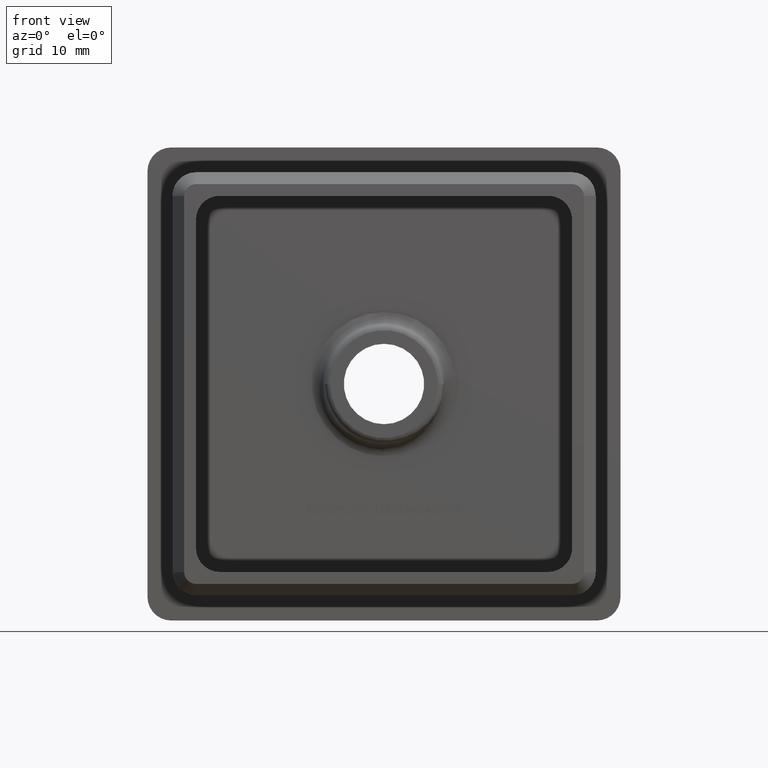
[diagram: clean part render]
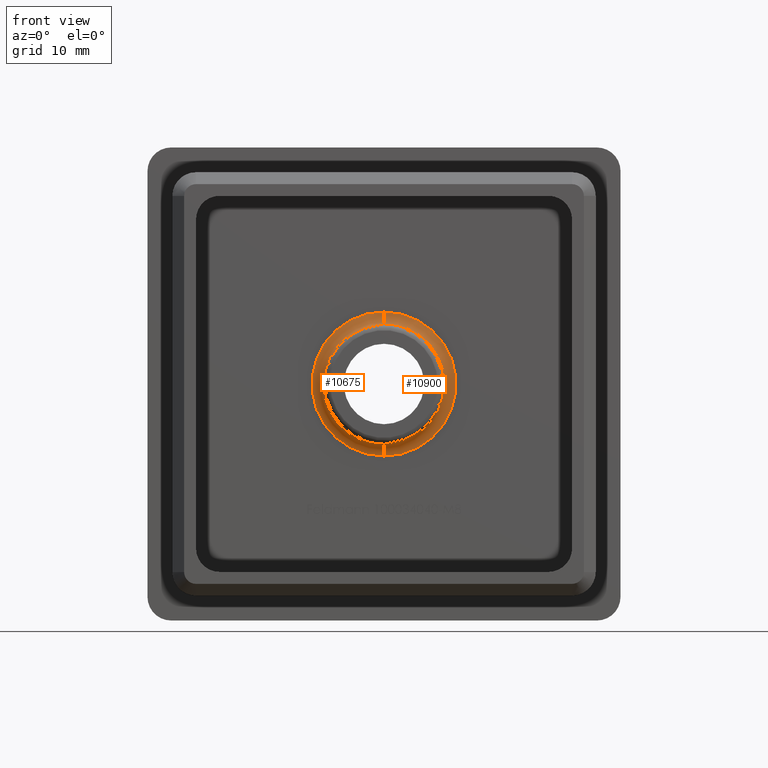
[diagram: same view with one multi-face feature highlighted, each face labeled with its STEP entity id]
A machine part, front view. The highlighted faces form ONE feature: a constant-radius fillet chain: 2 tangent blend faces with common blend radius 1 mm. The faces share edges in the B-rep.
Their STEP definitions:
[1] entity #10900 (Torus):
#2 = DIRECTION ( 'NONE',  ( 1.224646799147353500E-016, -1.000000000000000000, 0.0000000000000000000 ) ) ;
#188 = EDGE_CURVE ( 'NONE', #2683, #862, #14932, .T. ) ;
#658 = DIRECTION ( 'NONE',  ( 0.0000000000000000000, 1.000000000000000000, 0.0000000000000000000 ) ) ;
#862 = VERTEX_POINT ( 'NONE', #12671 ) ;
#908 = ORIENTED_EDGE ( 'NONE', *, *, #6231, .F. ) ;
#1313 = DIRECTION ( 'NONE',  ( -1.000000000000000000, -1.276755198502429000E-016, 0.0000000000000000000 ) ) ;
#1680 = ORIENTED_EDGE ( 'NONE', *, *, #12594, .F. ) ;
#1919 = AXIS2_PLACEMENT_3D ( 'NONE', #2702, #2, #1313 ) ;
#2514 = CARTESIAN_POINT ( 'NONE',  ( 1.001573005813146500E-015, -1.000000000000000000, -6.091308501069263100 ) ) ;
#2582 = ORIENTED_EDGE ( 'NONE', *, *, #16575, .T. ) ;
#2607 = EDGE_LOOP ( 'NONE', ( #9493, #1680, #2582, #908, #3817 ) ) ;
#2683 = VERTEX_POINT ( 'NONE', #4010 ) ;
#2702 = CARTESIAN_POINT ( 'NONE',  ( 2.556028599677928600E-016, -0.9128442572523486300, 1.984021111433010100E-016 ) ) ;
#2994 = CARTESIAN_POINT ( 'NONE',  ( 2.556028599677928600E-016, -1.000000000000000000, 1.984021111433010100E-016 ) ) ;
#3168 = EDGE_CURVE ( 'NONE', #4459, #2683, #4324, .T. ) ;
#3334 = CIRCLE ( 'NONE', #3552, 1.000000000000000000 ) ;
#3552 = AXIS2_PLACEMENT_3D ( 'NONE', #15246, #11180, #3612 ) ;
#3612 = DIRECTION ( 'NONE',  ( 0.0000000000000000000, 0.0000000000000000000, 1.000000000000000000 ) ) ;
#3817 = ORIENTED_EDGE ( 'NONE', *, *, #188, .F. ) ;
#3879 = FACE_OUTER_BOUND ( 'NONE', #2607, .T. ) ;
#4010 = CARTESIAN_POINT ( 'NONE',  ( 9.405736733958655000E-016, -0.9128442572523486300, -5.095113802977517800 ) ) ;
#4236 = CARTESIAN_POINT ( 'NONE',  ( 2.556028599677928600E-016, 0.0000000000000000000, 1.984021111433010100E-016 ) ) ;
#4324 = CIRCLE ( 'NONE', #9629, 1.000000000000000000 ) ;
#4459 = VERTEX_POINT ( 'NONE', #7734 ) ;
#5787 = DIRECTION ( 'NONE',  ( -1.000000000000000000, -1.276755198502429000E-016, 0.0000000000000000000 ) ) ;
#6231 = EDGE_CURVE ( 'NONE', #862, #14417, #15038, .T. ) ;
#6386 = CIRCLE ( 'NONE', #12996, 6.091308501069263100 ) ;
#6652 = DIRECTION ( 'NONE',  ( 1.224646799147352500E-016, 0.0000000000000000000, -1.000000000000000000 ) ) ;
#7734 = CARTESIAN_POINT ( 'NONE',  ( 1.001573005813146500E-015, 0.0000000000000000000, -6.091308501069263100 ) ) ;
#8183 = DIRECTION ( 'NONE',  ( 1.224646799147353500E-016, -1.000000000000000000, 0.0000000000000000000 ) ) ;
#8366 = CARTESIAN_POINT ( 'NONE',  ( 2.556028599677928600E-016, -0.9128442572523486300, 1.984021111433010100E-016 ) ) ;
#9233 = DIRECTION ( 'NONE',  ( 1.000000000000000000, -0.0000000000000000000, 1.224646799147353200E-016 ) ) ;
#9493 = ORIENTED_EDGE ( 'NONE', *, *, #3168, .F. ) ;
#9629 = AXIS2_PLACEMENT_3D ( 'NONE', #2514, #9233, #6652 ) ;
#10175 = AXIS2_PLACEMENT_3D ( 'NONE', #8366, #8183, #5787 ) ;
#10408 = TOROIDAL_SURFACE ( 'NONE', #13744, 6.091308501069263100, 1.000000000000000000 ) ;
#10799 = CARTESIAN_POINT ( 'NONE',  ( 2.556028599677929600E-016, -0.9128442572523486300, 5.095113802977517800 ) ) ;
#10900 = ADVANCED_FACE ( 'NONE', ( #3879 ), #10408, .F. ) ;
#11124 = DIRECTION ( 'NONE',  ( 0.0000000000000000000, 0.0000000000000000000, 1.000000000000000000 ) ) ;
#11180 = DIRECTION ( 'NONE',  ( -1.000000000000000000, 0.0000000000000000000, 0.0000000000000000000 ) ) ;
#12224 = DIRECTION ( 'NONE',  ( 0.0000000000000000000, 0.0000000000000000000, 1.000000000000000000 ) ) ;
#12594 = EDGE_CURVE ( 'NONE', #14505, #4459, #6386, .T. ) ;
#12671 = CARTESIAN_POINT ( 'NONE',  ( 5.095113802977517800, -0.9128442572523479700, 6.239714810107915300E-016 ) ) ;
#12996 = AXIS2_PLACEMENT_3D ( 'NONE', #4236, #658, #11124 ) ;
#13517 = DIRECTION ( 'NONE',  ( 0.0000000000000000000, 1.000000000000000000, 0.0000000000000000000 ) ) ;
#13744 = AXIS2_PLACEMENT_3D ( 'NONE', #2994, #13517, #12224 ) ;
#14417 = VERTEX_POINT ( 'NONE', #10799 ) ;
#14505 = VERTEX_POINT ( 'NONE', #14720 ) ;
#14720 = CARTESIAN_POINT ( 'NONE',  ( 2.556028599677928600E-016, 0.0000000000000000000, 6.091308501069263100 ) ) ;
#14932 = CIRCLE ( 'NONE', #1919, 5.095113802977517800 ) ;
#15038 = CIRCLE ( 'NONE', #10175, 5.095113802977517800 ) ;
#15246 = CARTESIAN_POINT ( 'NONE',  ( 2.556028599677928600E-016, -1.000000000000000000, 6.091308501069263100 ) ) ;
#16575 = EDGE_CURVE ( 'NONE', #14505, #14417, #3334, .T. ) ;
[2] entity #10675 (Torus):
#30 = ORIENTED_EDGE ( 'NONE', *, *, #14033, .F. ) ;
#371 = CIRCLE ( 'NONE', #3427, 5.095113802977517800 ) ;
#1746 = AXIS2_PLACEMENT_3D ( 'NONE', #16294, #1939, #8602 ) ;
#1936 = ORIENTED_EDGE ( 'NONE', *, *, #10128, .F. ) ;
#1939 = DIRECTION ( 'NONE',  ( 1.224646799147353500E-016, -1.000000000000000000, 0.0000000000000000000 ) ) ;
#2514 = CARTESIAN_POINT ( 'NONE',  ( 1.001573005813146500E-015, -1.000000000000000000, -6.091308501069263100 ) ) ;
#2683 = VERTEX_POINT ( 'NONE', #4010 ) ;
#3006 = EDGE_LOOP ( 'NONE', ( #30, #8762, #3203, #1936, #8520 ) ) ;
#3168 = EDGE_CURVE ( 'NONE', #4459, #2683, #4324, .T. ) ;
#3203 = ORIENTED_EDGE ( 'NONE', *, *, #7143, .F. ) ;
#3334 = CIRCLE ( 'NONE', #3552, 1.000000000000000000 ) ;
#3427 = AXIS2_PLACEMENT_3D ( 'NONE', #16630, #6580, #3911 ) ;
#3552 = AXIS2_PLACEMENT_3D ( 'NONE', #15246, #11180, #3612 ) ;
#3612 = DIRECTION ( 'NONE',  ( 0.0000000000000000000, 0.0000000000000000000, 1.000000000000000000 ) ) ;
#3911 = DIRECTION ( 'NONE',  ( -1.000000000000000000, -1.276755198502429000E-016, 0.0000000000000000000 ) ) ;
#4010 = CARTESIAN_POINT ( 'NONE',  ( 9.405736733958655000E-016, -0.9128442572523486300, -5.095113802977517800 ) ) ;
#4324 = CIRCLE ( 'NONE', #9629, 1.000000000000000000 ) ;
#4336 = CARTESIAN_POINT ( 'NONE',  ( 2.556028599677928600E-016, -1.000000000000000000, 1.984021111433010100E-016 ) ) ;
#4459 = VERTEX_POINT ( 'NONE', #7734 ) ;
#5511 = TOROIDAL_SURFACE ( 'NONE', #6146, 6.091308501069263100, 1.000000000000000000 ) ;
#5819 = DIRECTION ( 'NONE',  ( 0.0000000000000000000, 0.0000000000000000000, 1.000000000000000000 ) ) ;
#6092 = CARTESIAN_POINT ( 'NONE',  ( -5.095113802977517800, -0.9128442572523493000, 0.0000000000000000000 ) ) ;
#6146 = AXIS2_PLACEMENT_3D ( 'NONE', #4336, #15968, #10930 ) ;
#6580 = DIRECTION ( 'NONE',  ( 1.224646799147353500E-016, -1.000000000000000000, 0.0000000000000000000 ) ) ;
#6652 = DIRECTION ( 'NONE',  ( 1.224646799147352500E-016, 0.0000000000000000000, -1.000000000000000000 ) ) ;
#7143 = EDGE_CURVE ( 'NONE', #14132, #2683, #13068, .T. ) ;
#7554 = FACE_OUTER_BOUND ( 'NONE', #3006, .T. ) ;
#7734 = CARTESIAN_POINT ( 'NONE',  ( 1.001573005813146500E-015, 0.0000000000000000000, -6.091308501069263100 ) ) ;
#8363 = AXIS2_PLACEMENT_3D ( 'NONE', #13456, #14819, #5819 ) ;
#8520 = ORIENTED_EDGE ( 'NONE', *, *, #16575, .F. ) ;
#8602 = DIRECTION ( 'NONE',  ( -1.000000000000000000, -1.276755198502429000E-016, 0.0000000000000000000 ) ) ;
#8762 = ORIENTED_EDGE ( 'NONE', *, *, #3168, .T. ) ;
#9233 = DIRECTION ( 'NONE',  ( 1.000000000000000000, -0.0000000000000000000, 1.224646799147353200E-016 ) ) ;
#9629 = AXIS2_PLACEMENT_3D ( 'NONE', #2514, #9233, #6652 ) ;
#10128 = EDGE_CURVE ( 'NONE', #14417, #14132, #371, .T. ) ;
#10675 = ADVANCED_FACE ( 'NONE', ( #7554 ), #5511, .F. ) ;
#10799 = CARTESIAN_POINT ( 'NONE',  ( 2.556028599677929600E-016, -0.9128442572523486300, 5.095113802977517800 ) ) ;
#10930 = DIRECTION ( 'NONE',  ( 0.0000000000000000000, 0.0000000000000000000, 1.000000000000000000 ) ) ;
#11139 = CIRCLE ( 'NONE', #8363, 6.091308501069263100 ) ;
#11180 = DIRECTION ( 'NONE',  ( -1.000000000000000000, 0.0000000000000000000, 0.0000000000000000000 ) ) ;
#13068 = CIRCLE ( 'NONE', #1746, 5.095113802977517800 ) ;
#13456 = CARTESIAN_POINT ( 'NONE',  ( 2.556028599677928600E-016, 0.0000000000000000000, 1.984021111433010100E-016 ) ) ;
#14033 = EDGE_CURVE ( 'NONE', #4459, #14505, #11139, .T. ) ;
#14132 = VERTEX_POINT ( 'NONE', #6092 ) ;
#14417 = VERTEX_POINT ( 'NONE', #10799 ) ;
#14505 = VERTEX_POINT ( 'NONE', #14720 ) ;
#14720 = CARTESIAN_POINT ( 'NONE',  ( 2.556028599677928600E-016, 0.0000000000000000000, 6.091308501069263100 ) ) ;
#14819 = DIRECTION ( 'NONE',  ( 0.0000000000000000000, 1.000000000000000000, 0.0000000000000000000 ) ) ;
#15246 = CARTESIAN_POINT ( 'NONE',  ( 2.556028599677928600E-016, -1.000000000000000000, 6.091308501069263100 ) ) ;
#15968 = DIRECTION ( 'NONE',  ( 0.0000000000000000000, 1.000000000000000000, 0.0000000000000000000 ) ) ;
#16294 = CARTESIAN_POINT ( 'NONE',  ( 2.556028599677928600E-016, -0.9128442572523486300, 1.984021111433010100E-016 ) ) ;
#16575 = EDGE_CURVE ( 'NONE', #14505, #14417, #3334, .T. ) ;
#16630 = CARTESIAN_POINT ( 'NONE',  ( 2.556028599677928600E-016, -0.9128442572523486300, 1.984021111433010100E-016 ) ) ;